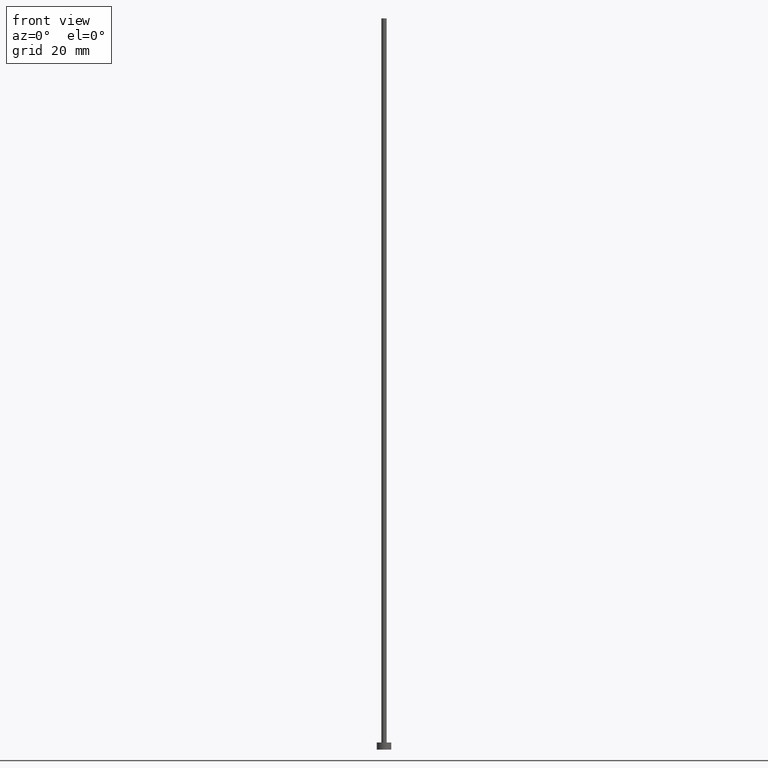
[diagram: clean part render]
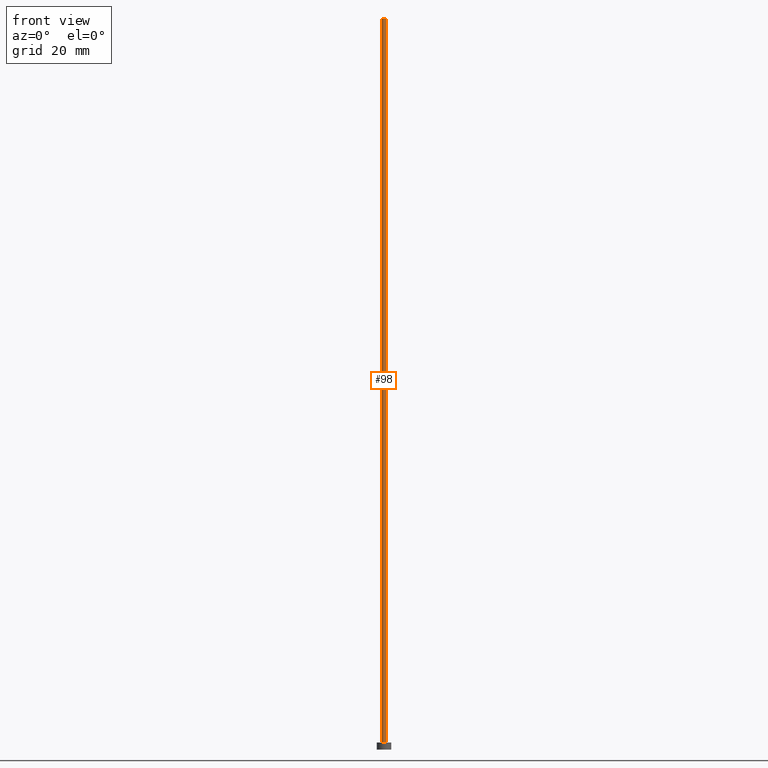
[diagram: same view with one face highlighted and labeled with its STEP entity id]
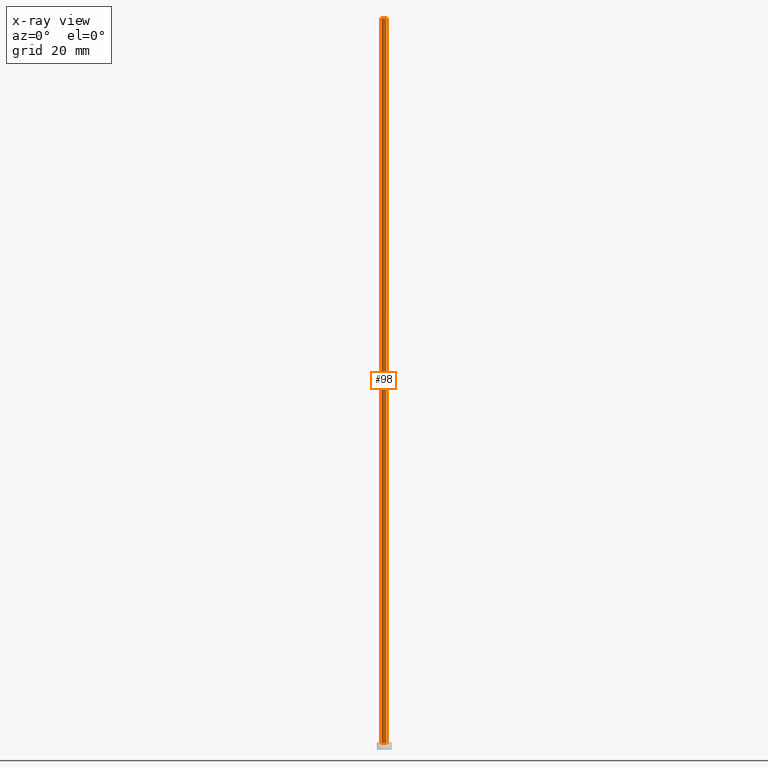
[diagram: x-ray of the same camera — body ghosted, the highlighted face saturated]
A machine part, front view. The second image highlights one B-rep face of the part: STEP entity #98.
The next image is the same camera in x-ray: the body ghosted, the highlighted face saturated — about 0% of this face is hidden behind the body in this view.
In plain terms, the highlighted cylindrical surface (edge-blend (fillet) strip) has radius 0.45 mm, axis along (-0, -0, -1).
Its self-contained STEP definition (entity closure, byte-faithful):
#7 = CARTESIAN_POINT ( 'NONE',  ( 0.000000000000000000, 0.000000000000000000, 125.0000000000000000 ) ) ;
#9 = DIRECTION ( 'NONE',  ( -0.000000000000000000, -0.000000000000000000, -1.000000000000000000 ) ) ;
#15 = VECTOR ( 'NONE', #37, 1000.000000000000000 ) ;
#28 = CARTESIAN_POINT ( 'NONE',  ( -0.4500000000000000111, 0.000000000000000000, 125.0000000000000000 ) ) ;
#30 = DIRECTION ( 'NONE',  ( 0.000000000000000000, 0.000000000000000000, 1.000000000000000000 ) ) ;
#33 = DIRECTION ( 'NONE',  ( 1.000000000000000000, 0.000000000000000000, 0.000000000000000000 ) ) ;
#35 = ORIENTED_EDGE ( 'NONE', *, *, #128, .F. ) ;
#37 = DIRECTION ( 'NONE',  ( -0.000000000000000000, -0.000000000000000000, -1.000000000000000000 ) ) ;
#43 = EDGE_LOOP ( 'NONE', ( #35, #168, #119, #92 ) ) ;
#46 = EDGE_CURVE ( 'NONE', #181, #89, #59, .T. ) ;
#59 = CIRCLE ( 'NONE', #130, 0.4500000000000000111 ) ;
#62 = EDGE_CURVE ( 'NONE', #181, #200, #207, .T. ) ;
#70 = CIRCLE ( 'NONE', #237, 0.4500000000000000111 ) ;
#71 = DIRECTION ( 'NONE',  ( 0.000000000000000000, 0.000000000000000000, 1.000000000000000000 ) ) ;
#73 = CARTESIAN_POINT ( 'NONE',  ( 0.4500000000000000111, 5.510910596163088939E-17, 125.0000000000000000 ) ) ;
#89 = VERTEX_POINT ( 'NONE', #73 ) ;
#90 = DIRECTION ( 'NONE',  ( -0.000000000000000000, -0.000000000000000000, -1.000000000000000000 ) ) ;
#92 = ORIENTED_EDGE ( 'NONE', *, *, #226, .T. ) ;
#98 = ADVANCED_FACE ( 'NONE', ( #131 ), #115, .T. ) ;
#115 = CYLINDRICAL_SURFACE ( 'NONE', #243, 0.4500000000000000111 ) ;
#116 = VERTEX_POINT ( 'NONE', #159 ) ;
#119 = ORIENTED_EDGE ( 'NONE', *, *, #62, .T. ) ;
#120 = CARTESIAN_POINT ( 'NONE',  ( -0.4500000000000000111, 0.000000000000000000, 125.0000000000000000 ) ) ;
#128 = EDGE_CURVE ( 'NONE', #89, #116, #227, .T. ) ;
#130 = AXIS2_PLACEMENT_3D ( 'NONE', #225, #71, #242 ) ;
#131 = FACE_OUTER_BOUND ( 'NONE', #43, .T. ) ;
#151 = DIRECTION ( 'NONE',  ( -1.000000000000000000, 0.000000000000000000, 0.000000000000000000 ) ) ;
#159 = CARTESIAN_POINT ( 'NONE',  ( 0.4500000000000000111, 5.510910596163088939E-17, 1.199999999999999956 ) ) ;
#166 = VECTOR ( 'NONE', #9, 1000.000000000000000 ) ;
#168 = ORIENTED_EDGE ( 'NONE', *, *, #46, .F. ) ;
#181 = VERTEX_POINT ( 'NONE', #120 ) ;
#192 = CARTESIAN_POINT ( 'NONE',  ( -0.4500000000000000111, 0.000000000000000000, 1.199999999999999956 ) ) ;
#200 = VERTEX_POINT ( 'NONE', #192 ) ;
#202 = CARTESIAN_POINT ( 'NONE',  ( 0.000000000000000000, 0.000000000000000000, 1.199999999999999956 ) ) ;
#207 = LINE ( 'NONE', #28, #15 ) ;
#225 = CARTESIAN_POINT ( 'NONE',  ( 0.000000000000000000, 0.000000000000000000, 125.0000000000000000 ) ) ;
#226 = EDGE_CURVE ( 'NONE', #200, #116, #70, .T. ) ;
#227 = LINE ( 'NONE', #252, #166 ) ;
#237 = AXIS2_PLACEMENT_3D ( 'NONE', #202, #30, #33 ) ;
#242 = DIRECTION ( 'NONE',  ( 1.000000000000000000, 0.000000000000000000, 0.000000000000000000 ) ) ;
#243 = AXIS2_PLACEMENT_3D ( 'NONE', #7, #90, #151 ) ;
#252 = CARTESIAN_POINT ( 'NONE',  ( 0.4500000000000000111, 5.510910596163088939E-17, 125.0000000000000000 ) ) ;